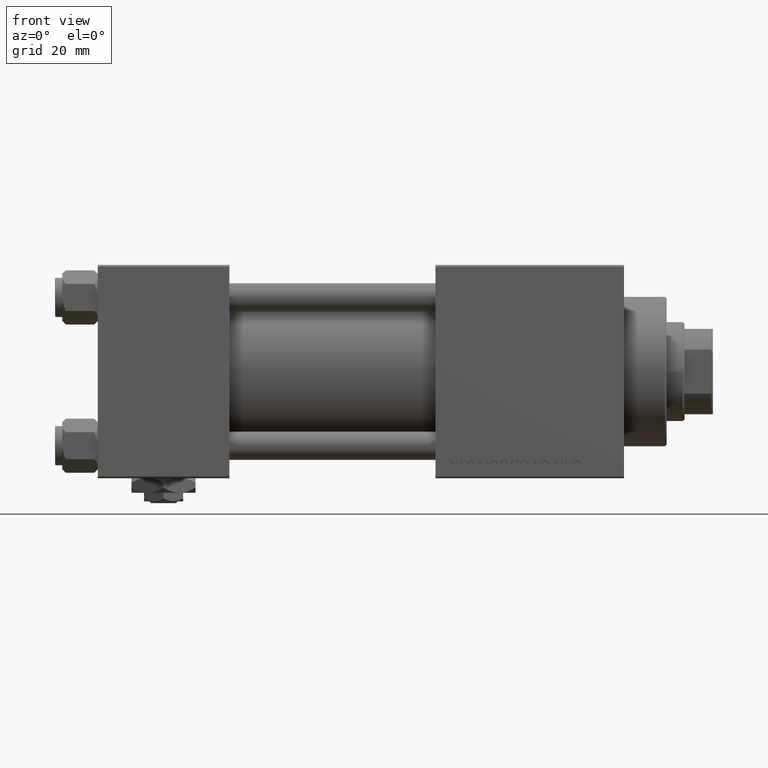
[diagram: clean part render]
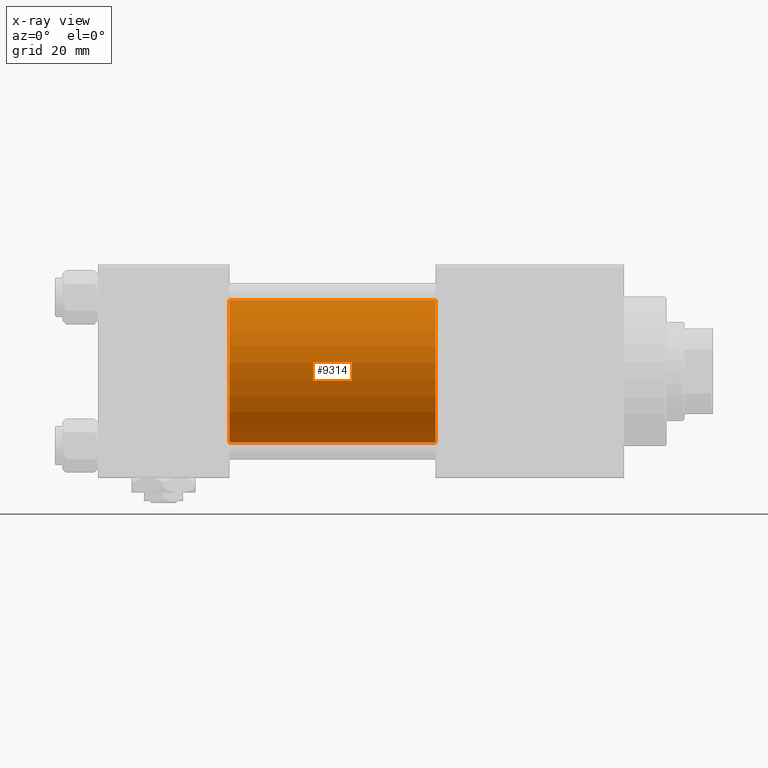
[diagram: x-ray — body ghosted, one internal face saturated and labeled with its STEP entity id]
A machine part, front view, then the same camera in x-ray: the body is ghosted and one INTERNAL B-rep face — a face not visible from any outside direction — is saturated and labeled: STEP entity #9314.
In plain terms, the highlighted cylindrical surface (partial cylindrical patch) has radius 20 mm, axis along (-1, -0, -0).
Its self-contained STEP definition (entity closure, byte-faithful):
#2367 = DIRECTION ( 'NONE',  ( 1.000000000000000000, 0.000000000000000000, 0.000000000000000000 ) ) ;
#3541 = EDGE_CURVE ( 'NONE', #23356, #13461, #28347, .T. ) ;
#5286 = VECTOR ( 'NONE', #33693, 1000.000000000000000 ) ;
#5862 = EDGE_CURVE ( 'NONE', #16711, #27934, #40212, .T. ) ;
#9314 = ADVANCED_FACE ( 'NONE', ( #48957 ), #49213, .F. ) ;
#10695 = AXIS2_PLACEMENT_3D ( 'NONE', #13935, #2367, #33144 ) ;
#12648 = ORIENTED_EDGE ( 'NONE', *, *, #3541, .T. ) ;
#13461 = VERTEX_POINT ( 'NONE', #36494 ) ;
#13935 = CARTESIAN_POINT ( 'NONE',  ( 95.00000000000000000, -2.602085213965210642E-15, 0.000000000000000000 ) ) ;
#16711 = VERTEX_POINT ( 'NONE', #25571 ) ;
#17666 = DIRECTION ( 'NONE',  ( -1.000000000000000000, -0.000000000000000000, -0.000000000000000000 ) ) ;
#20975 = AXIS2_PLACEMENT_3D ( 'NONE', #41086, #17666, #33730 ) ;
#21040 = ORIENTED_EDGE ( 'NONE', *, *, #49499, .F. ) ;
#23356 = VERTEX_POINT ( 'NONE', #29346 ) ;
#25533 = CARTESIAN_POINT ( 'NONE',  ( 95.00000000000000000, -2.602085213965210642E-15, 20.00000000000000000 ) ) ;
#25571 = CARTESIAN_POINT ( 'NONE',  ( 37.00000000000000000, -2.602085213965210642E-15, 20.00000000000000000 ) ) ;
#25819 = CARTESIAN_POINT ( 'NONE',  ( 37.00000000000000000, -2.602085213965210642E-15, 0.000000000000000000 ) ) ;
#27405 = LINE ( 'NONE', #25533, #5286 ) ;
#27934 = VERTEX_POINT ( 'NONE', #45211 ) ;
#28347 = CIRCLE ( 'NONE', #10695, 20.00000000000000000 ) ;
#28552 = ORIENTED_EDGE ( 'NONE', *, *, #34414, .T. ) ;
#28707 = ORIENTED_EDGE ( 'NONE', *, *, #5862, .F. ) ;
#28985 = CARTESIAN_POINT ( 'NONE',  ( 95.00000000000000000, -1.527916156705046464E-16, -20.00000000000000000 ) ) ;
#29255 = DIRECTION ( 'NONE',  ( 1.000000000000000000, 0.000000000000000000, 0.000000000000000000 ) ) ;
#29346 = CARTESIAN_POINT ( 'NONE',  ( 95.00000000000000000, -2.602085213965210642E-15, 20.00000000000000000 ) ) ;
#33144 = DIRECTION ( 'NONE',  ( 0.000000000000000000, 0.000000000000000000, -1.000000000000000000 ) ) ;
#33693 = DIRECTION ( 'NONE',  ( -1.000000000000000000, -0.000000000000000000, -0.000000000000000000 ) ) ;
#33730 = DIRECTION ( 'NONE',  ( 0.000000000000000000, 0.000000000000000000, 1.000000000000000000 ) ) ;
#34414 = EDGE_CURVE ( 'NONE', #13461, #27934, #40564, .T. ) ;
#36494 = CARTESIAN_POINT ( 'NONE',  ( 95.00000000000000000, -1.527916156705046464E-16, -20.00000000000000000 ) ) ;
#37657 = DIRECTION ( 'NONE',  ( -1.000000000000000000, -0.000000000000000000, -0.000000000000000000 ) ) ;
#39141 = VECTOR ( 'NONE', #37657, 1000.000000000000000 ) ;
#40212 = CIRCLE ( 'NONE', #46886, 20.00000000000000000 ) ;
#40564 = LINE ( 'NONE', #28985, #39141 ) ;
#41086 = CARTESIAN_POINT ( 'NONE',  ( 95.00000000000000000, -2.602085213965210642E-15, 0.000000000000000000 ) ) ;
#45211 = CARTESIAN_POINT ( 'NONE',  ( 37.00000000000000000, -1.527916156705046464E-16, -20.00000000000000000 ) ) ;
#45955 = EDGE_LOOP ( 'NONE', ( #12648, #28552, #28707, #21040 ) ) ;
#46886 = AXIS2_PLACEMENT_3D ( 'NONE', #25819, #29255, #48951 ) ;
#48951 = DIRECTION ( 'NONE',  ( 0.000000000000000000, 0.000000000000000000, -1.000000000000000000 ) ) ;
#48957 = FACE_OUTER_BOUND ( 'NONE', #45955, .T. ) ;
#49213 = CYLINDRICAL_SURFACE ( 'NONE', #20975, 20.00000000000000000 ) ;
#49499 = EDGE_CURVE ( 'NONE', #23356, #16711, #27405, .T. ) ;